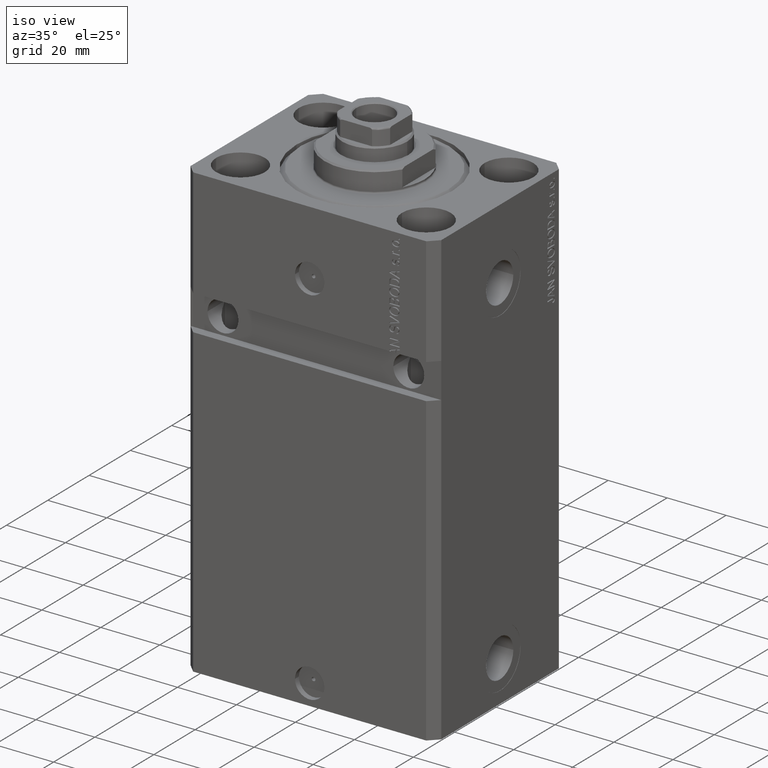
[diagram: clean part render]
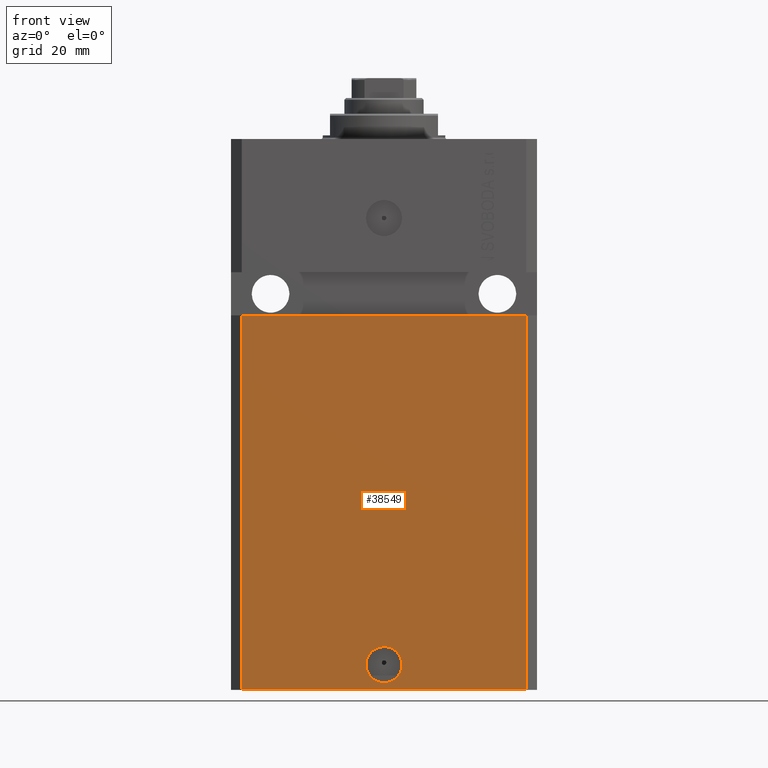
[diagram: tour spotlight — one face highlighted and labeled with its STEP entity id]
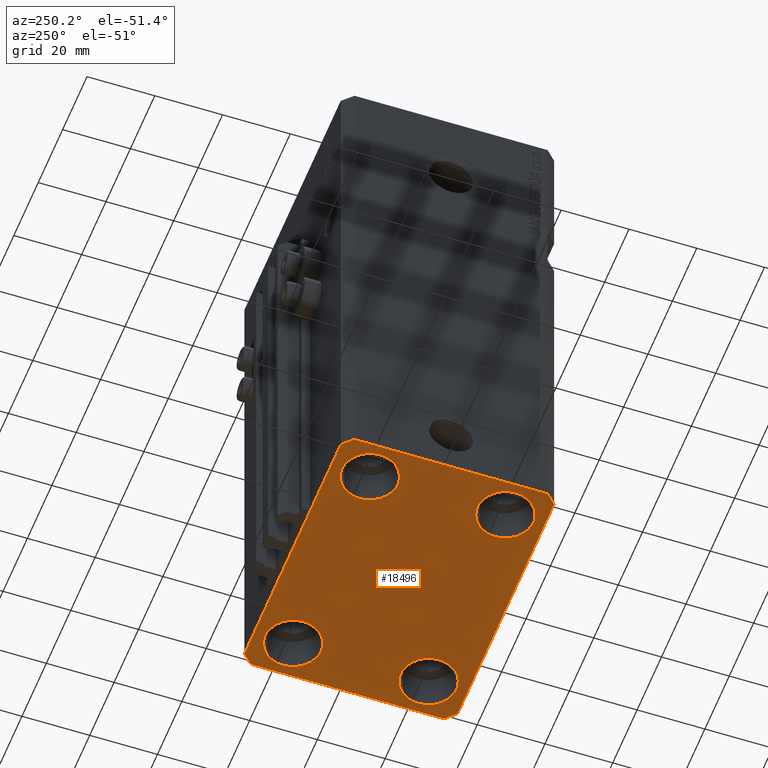
[diagram: tour spotlight — one face highlighted and labeled with its STEP entity id]
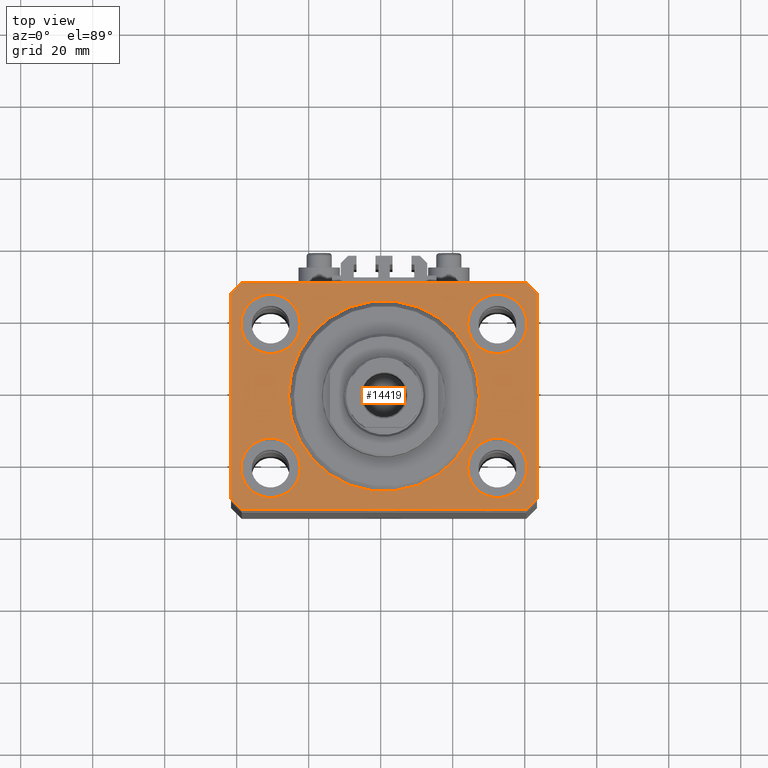
[diagram: tour spotlight — one face highlighted and labeled with its STEP entity id]
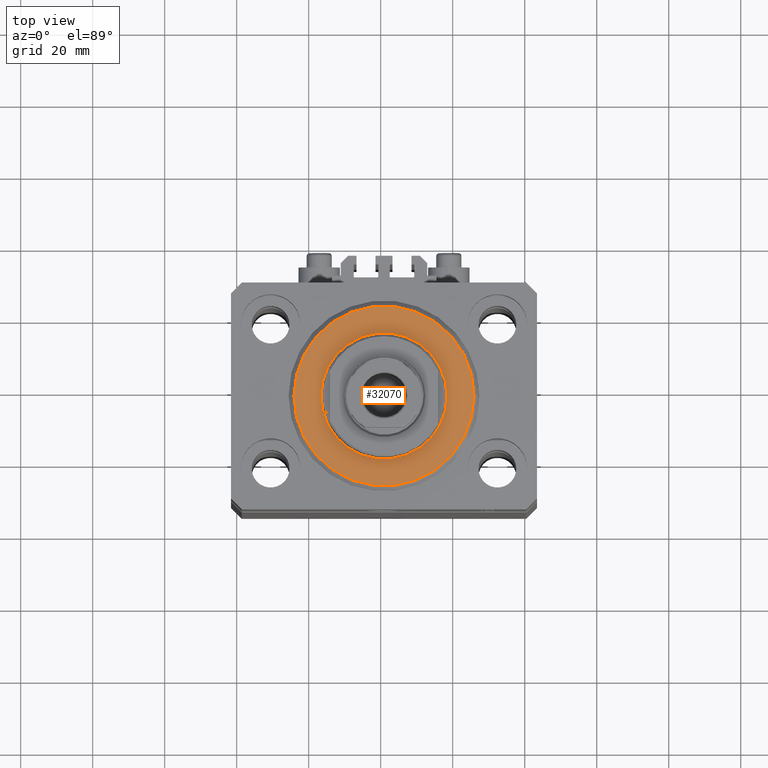
[diagram: tour spotlight — one face highlighted and labeled with its STEP entity id]
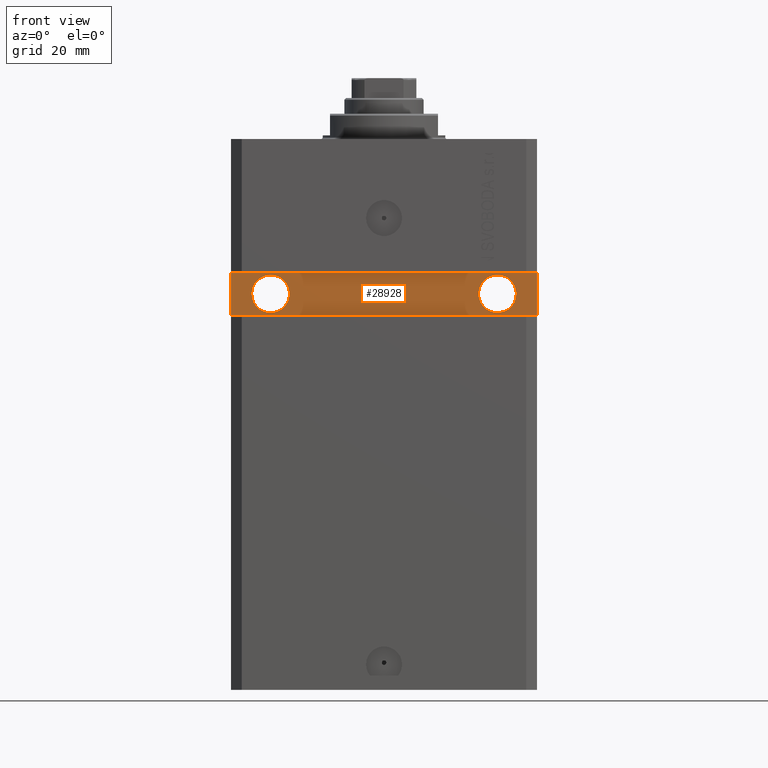
[diagram: tour spotlight — one face highlighted and labeled with its STEP entity id]
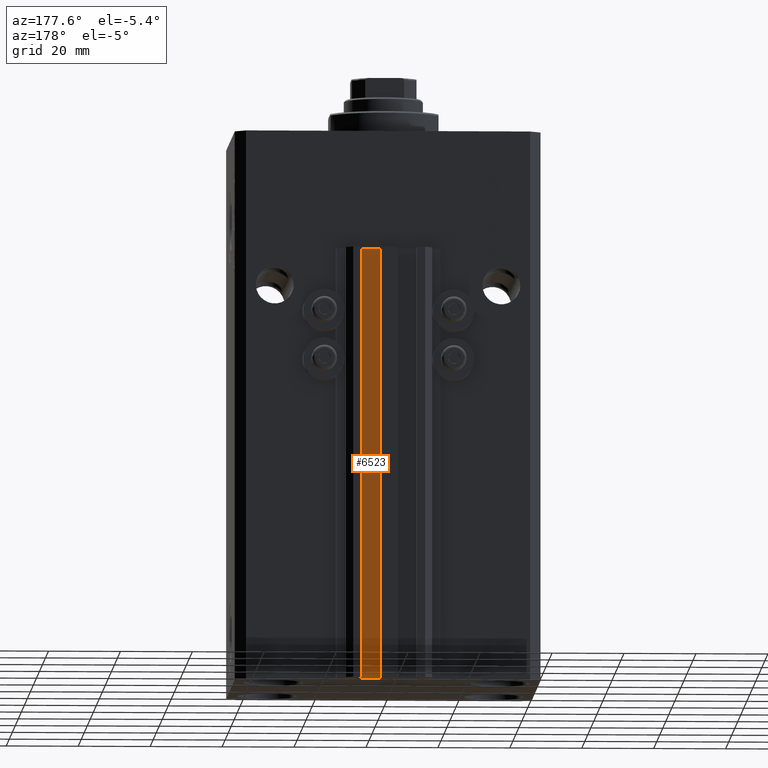
[diagram: tour spotlight — one face highlighted and labeled with its STEP entity id]
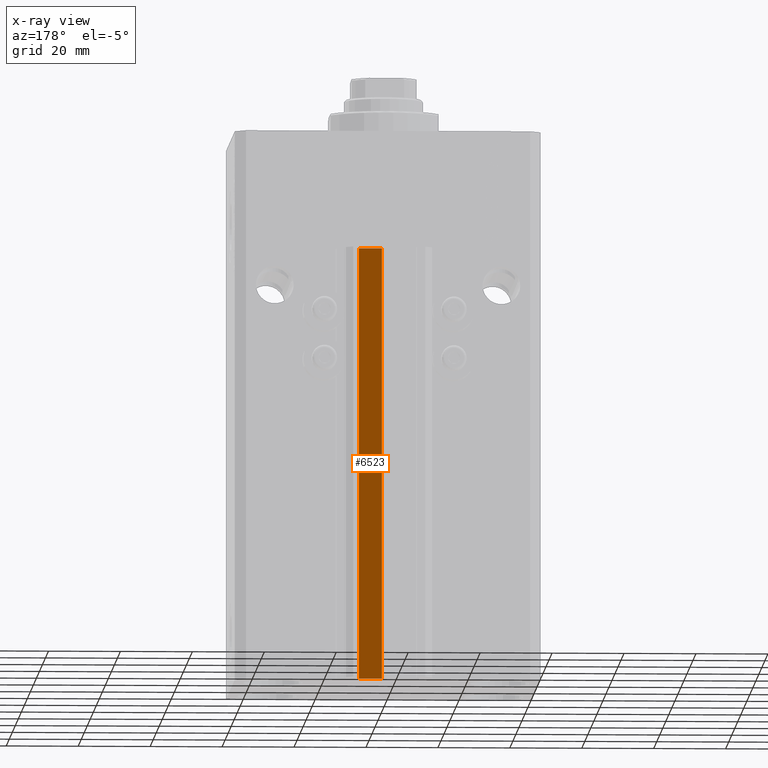
[diagram: x-ray of the same camera — body ghosted, this tour face saturated]
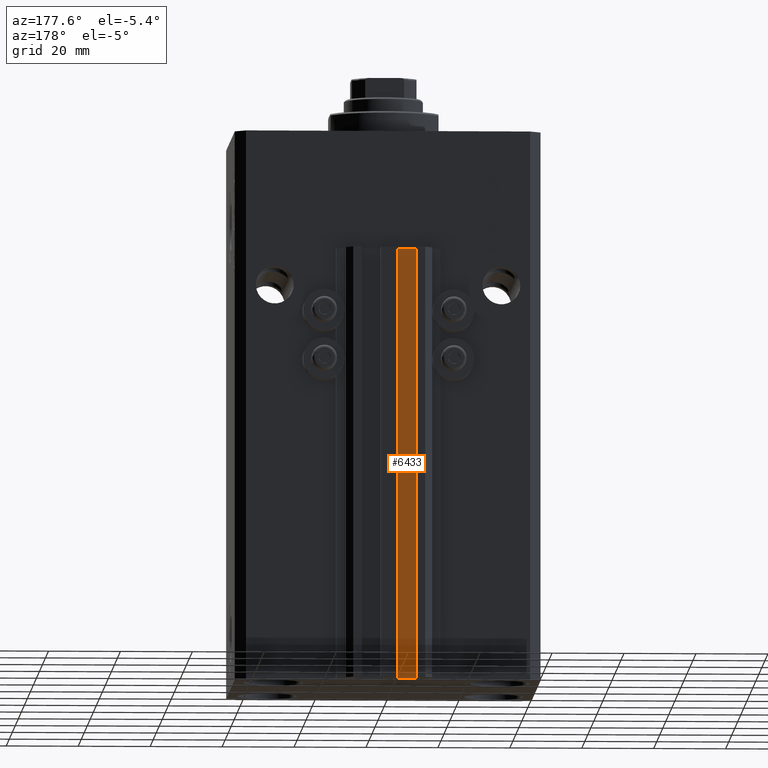
[diagram: tour spotlight — one face highlighted and labeled with its STEP entity id]
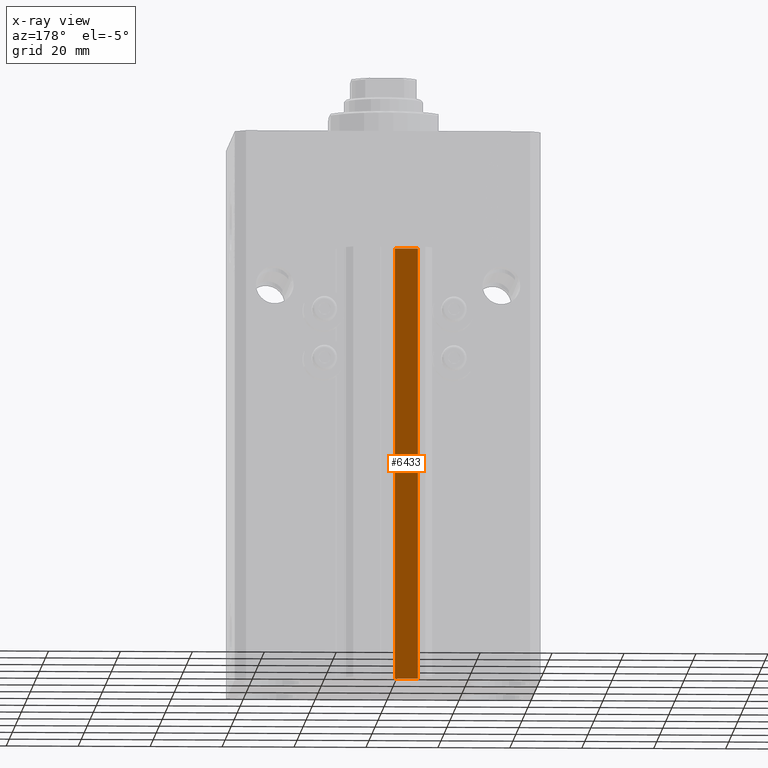
[diagram: x-ray of the same camera — body ghosted, this tour face saturated]
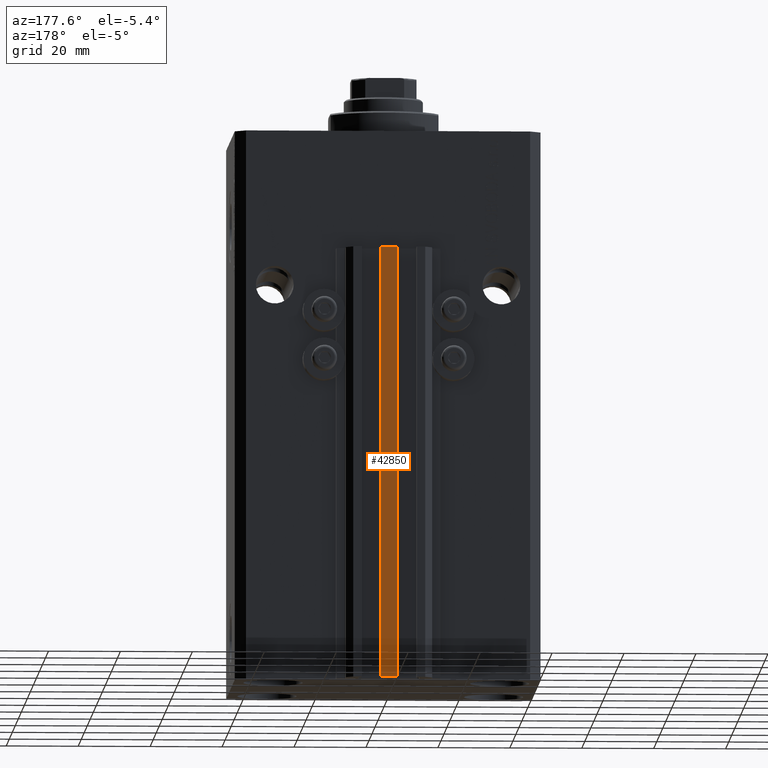
[diagram: tour spotlight — one face highlighted and labeled with its STEP entity id]
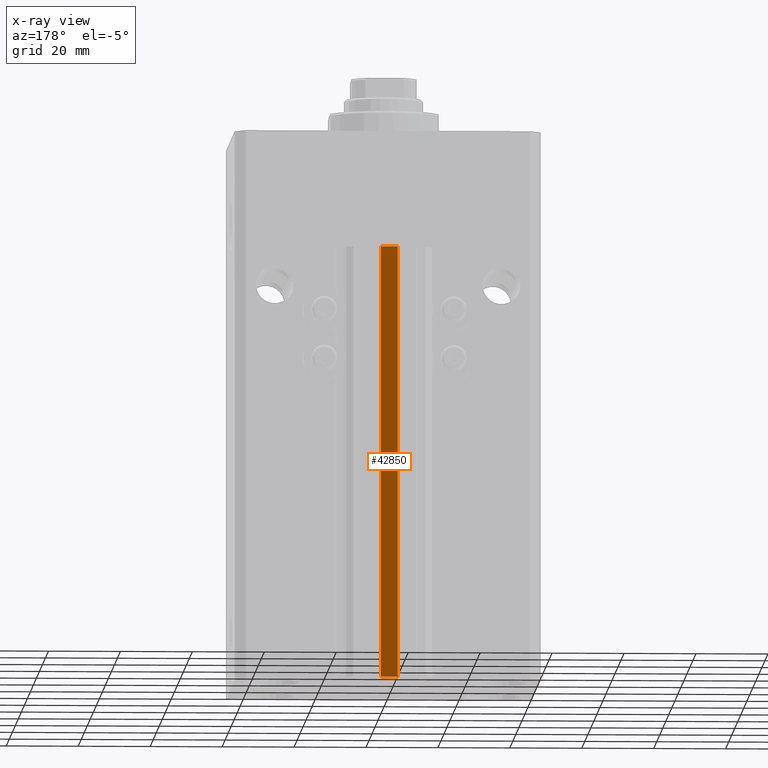
[diagram: x-ray of the same camera — body ghosted, this tour face saturated]
A machine part: a face-by-face anatomy tour. The part has 1103 B-rep faces; the first image is the clean iso view, then the 8 largest visible faces are spotlighted one at a time (largest first), each with its STEP entity span.

Face 1 — front view, entity #38549. In plain terms, the highlighted planar face has unit normal (0, -1, 0).
Definition (entity closure, byte-faithful):
#8 = CARTESIAN_POINT ( 'NONE',  ( -39.50000000000000711, -31.50000000000000000, -153.0000000000000000 ) ) ;
#278 = DIRECTION ( 'NONE',  ( 0.000000000000000000, 0.000000000000000000, 1.000000000000000000 ) ) ;
#1774 = ORIENTED_EDGE ( 'NONE', *, *, #46697, .F. ) ;
#2842 = CARTESIAN_POINT ( 'NONE',  ( 5.000000000000006217, -31.50000000000000000, -146.0000000000000000 ) ) ;
#3178 = LINE ( 'NONE', #8, #32430 ) ;
#3860 = ORIENTED_EDGE ( 'NONE', *, *, #47677, .F. ) ;
#5956 = CARTESIAN_POINT ( 'NONE',  ( 0.000000000000000000, -31.50000000000000000, -146.0000000000000000 ) ) ;
#6248 = VERTEX_POINT ( 'NONE', #45406 ) ;
#6335 = ORIENTED_EDGE ( 'NONE', *, *, #29681, .F. ) ;
#6712 = PLANE ( 'NONE',  #17630 ) ;
#6822 = DIRECTION ( 'NONE',  ( 1.000000000000000000, 0.000000000000000000, 0.000000000000000000 ) ) ;
#6914 = EDGE_CURVE ( 'NONE', #14141, #6248, #41398, .T. ) ;
#9363 = AXIS2_PLACEMENT_3D ( 'NONE', #24425, #39262, #35606 ) ;
#10130 = ORIENTED_EDGE ( 'NONE', *, *, #37106, .T. ) ;
#10357 = FACE_OUTER_BOUND ( 'NONE', #35395, .T. ) ;
#12288 = DIRECTION ( 'NONE',  ( 0.000000000000000000, -1.000000000000000000, 0.000000000000000000 ) ) ;
#13344 = CARTESIAN_POINT ( 'NONE',  ( -5.000000000000006217, -31.50000000000000000, -146.0000000000000000 ) ) ;
#14141 = VERTEX_POINT ( 'NONE', #35783 ) ;
#15105 = VECTOR ( 'NONE', #47016, 1000.000000000000000 ) ;
#15462 = CARTESIAN_POINT ( 'NONE',  ( -39.50000000000000711, -31.50000000000000000, -153.0000000000000000 ) ) ;
#17150 = DIRECTION ( 'NONE',  ( 1.176083712526788232E-16, -1.000000000000000000, 0.000000000000000000 ) ) ;
#17334 = CARTESIAN_POINT ( 'NONE',  ( -42.50000000000001421, -31.50000000000000711, -48.99999999999999289 ) ) ;
#17630 = AXIS2_PLACEMENT_3D ( 'NONE', #15462, #12288, #27127 ) ;
#18100 = LINE ( 'NONE', #32942, #20004 ) ;
#18208 = CARTESIAN_POINT ( 'NONE',  ( 39.50000000000000711, -31.50000000000000000, -153.0000000000000000 ) ) ;
#18302 = ORIENTED_EDGE ( 'NONE', *, *, #40085, .T. ) ;
#19837 = ORIENTED_EDGE ( 'NONE', *, *, #6914, .F. ) ;
#20004 = VECTOR ( 'NONE', #43660, 1000.000000000000000 ) ;
#21792 = CIRCLE ( 'NONE', #38083, 5.000000000000006217 ) ;
#22908 = VERTEX_POINT ( 'NONE', #13344 ) ;
#24425 = CARTESIAN_POINT ( 'NONE',  ( 0.000000000000000000, -31.50000000000000000, -146.0000000000000000 ) ) ;
#26342 = VERTEX_POINT ( 'NONE', #34361 ) ;
#26821 = VERTEX_POINT ( 'NONE', #18208 ) ;
#27023 = EDGE_LOOP ( 'NONE', ( #3860, #1774 ) ) ;
#27127 = DIRECTION ( 'NONE',  ( 0.000000000000000000, -0.000000000000000000, -1.000000000000000000 ) ) ;
#29681 = EDGE_CURVE ( 'NONE', #6248, #26342, #35820, .T. ) ;
#31979 = DIRECTION ( 'NONE',  ( 1.000000000000000000, 0.000000000000000000, 0.000000000000000000 ) ) ;
#32430 = VECTOR ( 'NONE', #6822, 1000.000000000000000 ) ;
#32658 = CIRCLE ( 'NONE', #9363, 5.000000000000006217 ) ;
#32942 = CARTESIAN_POINT ( 'NONE',  ( 39.50000000000000711, -31.50000000000000000, -153.0000000000000000 ) ) ;
#33595 = CARTESIAN_POINT ( 'NONE',  ( -39.50000000000000711, -31.50000000000000000, -153.0000000000000000 ) ) ;
#34361 = CARTESIAN_POINT ( 'NONE',  ( 39.50000000000000000, -31.49999999999999289, -48.99999999999997868 ) ) ;
#35395 = EDGE_LOOP ( 'NONE', ( #6335, #19837, #10130, #18302 ) ) ;
#35606 = DIRECTION ( 'NONE',  ( 1.000000000000000000, 0.000000000000000000, 0.000000000000000000 ) ) ;
#35783 = CARTESIAN_POINT ( 'NONE',  ( -39.50000000000000711, -31.50000000000000000, -153.0000000000000000 ) ) ;
#35820 = LINE ( 'NONE', #17334, #15105 ) ;
#37106 = EDGE_CURVE ( 'NONE', #14141, #26821, #3178, .T. ) ;
#38083 = AXIS2_PLACEMENT_3D ( 'NONE', #5956, #17150, #31979 ) ;
#38549 = ADVANCED_FACE ( 'NONE', ( #47826, #10357 ), #6712, .T. ) ;
#39262 = DIRECTION ( 'NONE',  ( 1.176083712526788232E-16, -1.000000000000000000, 0.000000000000000000 ) ) ;
#40085 = EDGE_CURVE ( 'NONE', #26821, #26342, #18100, .T. ) ;
#41398 = LINE ( 'NONE', #33595, #42211 ) ;
#42211 = VECTOR ( 'NONE', #278, 1000.000000000000000 ) ;
#43660 = DIRECTION ( 'NONE',  ( 0.000000000000000000, 0.000000000000000000, 1.000000000000000000 ) ) ;
#43695 = VERTEX_POINT ( 'NONE', #2842 ) ;
#45406 = CARTESIAN_POINT ( 'NONE',  ( -39.50000000000000000, -31.50000000000000711, -48.99999999999999289 ) ) ;
#46697 = EDGE_CURVE ( 'NONE', #22908, #43695, #21792, .T. ) ;
#47016 = DIRECTION ( 'NONE',  ( 1.000000000000000000, 1.632680918566406054E-16, 1.632680918566406054E-16 ) ) ;
#47677 = EDGE_CURVE ( 'NONE', #43695, #22908, #32658, .T. ) ;
#47826 = FACE_BOUND ( 'NONE', #27023, .T. ) ;

Face 2 — auxiliary view, entity #18496. In plain terms, the highlighted planar face has unit normal (0, 0, 1).
Definition (entity closure, byte-faithful):
#8 = CARTESIAN_POINT ( 'NONE',  ( -39.50000000000000711, -31.50000000000000000, -153.0000000000000000 ) ) ;
#78 = DIRECTION ( 'NONE',  ( -0.000000000000000000, -0.000000000000000000, 1.000000000000000000 ) ) ;
#410 = VECTOR ( 'NONE', #4192, 1000.000000000000000 ) ;
#412 = CARTESIAN_POINT ( 'NONE',  ( 39.74999999999999289, -20.00000000000000000, -153.0000000000000000 ) ) ;
#568 = ORIENTED_EDGE ( 'NONE', *, *, #26287, .T. ) ;
#632 = DIRECTION ( 'NONE',  ( -0.000000000000000000, -0.000000000000000000, 1.000000000000000000 ) ) ;
#644 = LINE ( 'NONE', #29581, #9854 ) ;
#814 = ORIENTED_EDGE ( 'NONE', *, *, #8793, .T. ) ;
#868 = EDGE_LOOP ( 'NONE', ( #41194, #25201 ) ) ;
#988 = VERTEX_POINT ( 'NONE', #38942 ) ;
#1632 = VERTEX_POINT ( 'NONE', #7566 ) ;
#1738 = CARTESIAN_POINT ( 'NONE',  ( -42.50000000000000000, -28.50000000000000000, -153.0000000000000000 ) ) ;
#1777 = EDGE_LOOP ( 'NONE', ( #814, #568 ) ) ;
#2464 = CARTESIAN_POINT ( 'NONE',  ( 31.50000000000000000, -20.00000000000000000, -153.0000000000000000 ) ) ;
#2604 = DIRECTION ( 'NONE',  ( 8.886653596232072440E-15, 1.000000000000000000, 0.000000000000000000 ) ) ;
#2937 = EDGE_CURVE ( 'NONE', #33507, #43984, #41332, .T. ) ;
#3178 = LINE ( 'NONE', #8, #32430 ) ;
#3311 = DIRECTION ( 'NONE',  ( -0.000000000000000000, -0.000000000000000000, 1.000000000000000000 ) ) ;
#3383 = EDGE_CURVE ( 'NONE', #41866, #14682, #35875, .T. ) ;
#4065 = LINE ( 'NONE', #40155, #31470 ) ;
#4192 = DIRECTION ( 'NONE',  ( 0.7071067811865483499, 0.7071067811865466846, 0.000000000000000000 ) ) ;
#4294 = DIRECTION ( 'NONE',  ( -1.000000000000000000, 0.000000000000000000, 0.000000000000000000 ) ) ;
#4904 = ORIENTED_EDGE ( 'NONE', *, *, #28219, .F. ) ;
#5120 = EDGE_CURVE ( 'NONE', #25853, #33823, #12841, .T. ) ;
#6196 = EDGE_CURVE ( 'NONE', #16143, #18976, #41761, .T. ) ;
#6262 = DIRECTION ( 'NONE',  ( -0.7071067811865356934, 0.7071067811865594521, 0.000000000000000000 ) ) ;
#6471 = VERTEX_POINT ( 'NONE', #24936 ) ;
#6535 = CIRCLE ( 'NONE', #7314, 8.250000000000000000 ) ;
#6678 = CARTESIAN_POINT ( 'NONE',  ( 23.25000000000000355, 20.00000000000001066, -153.0000000000000000 ) ) ;
#6822 = DIRECTION ( 'NONE',  ( 1.000000000000000000, 0.000000000000000000, 0.000000000000000000 ) ) ;
#6922 = DIRECTION ( 'NONE',  ( 0.000000000000000000, 0.000000000000000000, 1.000000000000000000 ) ) ;
#7314 = AXIS2_PLACEMENT_3D ( 'NONE', #35787, #28246, #17535 ) ;
#7566 = CARTESIAN_POINT ( 'NONE',  ( 42.50000000000000711, -28.50000000000000355, -153.0000000000000000 ) ) ;
#8417 = DIRECTION ( 'NONE',  ( 0.000000000000000000, -1.000000000000000000, 0.000000000000000000 ) ) ;
#8793 = EDGE_CURVE ( 'NONE', #6471, #46830, #6535, .T. ) ;
#9063 = ORIENTED_EDGE ( 'NONE', *, *, #14061, .F. ) ;
#9854 = VECTOR ( 'NONE', #4294, 1000.000000000000000 ) ;
#10093 = CARTESIAN_POINT ( 'NONE',  ( 0.000000000000000000, 0.000000000000000000, -153.0000000000000000 ) ) ;
#10363 = CARTESIAN_POINT ( 'NONE',  ( 42.50000000000000711, -28.50000000000000355, -153.0000000000000000 ) ) ;
#10562 = FACE_BOUND ( 'NONE', #36888, .T. ) ;
#11212 = CARTESIAN_POINT ( 'NONE',  ( 31.50000000000000000, 20.00000000000001066, -153.0000000000000000 ) ) ;
#12525 = DIRECTION ( 'NONE',  ( -0.000000000000000000, -0.000000000000000000, 1.000000000000000000 ) ) ;
#12718 = ORIENTED_EDGE ( 'NONE', *, *, #2937, .T. ) ;
#12841 = LINE ( 'NONE', #39596, #30522 ) ;
#13342 = EDGE_CURVE ( 'NONE', #14682, #41866, #34543, .T. ) ;
#14061 = EDGE_CURVE ( 'NONE', #44658, #16143, #4065, .T. ) ;
#14141 = VERTEX_POINT ( 'NONE', #35783 ) ;
#14148 = EDGE_CURVE ( 'NONE', #43984, #33507, #28359, .T. ) ;
#14392 = DIRECTION ( 'NONE',  ( -0.000000000000000000, -0.000000000000000000, 1.000000000000000000 ) ) ;
#14682 = VERTEX_POINT ( 'NONE', #47995 ) ;
#14786 = EDGE_CURVE ( 'NONE', #26821, #1632, #45304, .T. ) ;
#15238 = ORIENTED_EDGE ( 'NONE', *, *, #14148, .T. ) ;
#15446 = AXIS2_PLACEMENT_3D ( 'NONE', #21746, #78, #37287 ) ;
#15811 = VECTOR ( 'NONE', #8417, 1000.000000000000000 ) ;
#15941 = DIRECTION ( 'NONE',  ( 1.000000000000000000, 0.000000000000000000, 0.000000000000000000 ) ) ;
#16143 = VERTEX_POINT ( 'NONE', #30165 ) ;
#16928 = FACE_BOUND ( 'NONE', #46778, .T. ) ;
#17253 = DIRECTION ( 'NONE',  ( 0.7071067811865471286, -0.7071067811865479058, 0.000000000000000000 ) ) ;
#17275 = AXIS2_PLACEMENT_3D ( 'NONE', #26524, #42344, #30413 ) ;
#17535 = DIRECTION ( 'NONE',  ( 1.000000000000000000, 0.000000000000000000, 0.000000000000000000 ) ) ;
#17773 = CIRCLE ( 'NONE', #15446, 8.250000000000000000 ) ;
#18003 = DIRECTION ( 'NONE',  ( -0.7071067811865471286, -0.7071067811865479058, 0.000000000000000000 ) ) ;
#18154 = CARTESIAN_POINT ( 'NONE',  ( 39.50000000000056843, 31.50000000000000000, -153.0000000000000000 ) ) ;
#18208 = CARTESIAN_POINT ( 'NONE',  ( 39.50000000000000711, -31.50000000000000000, -153.0000000000000000 ) ) ;
#18225 = EDGE_CURVE ( 'NONE', #33823, #44658, #644, .T. ) ;
#18496 = ADVANCED_FACE ( 'NONE', ( #36586, #16928, #10562, #43662, #43431 ), #35647, .F. ) ;
#18976 = VERTEX_POINT ( 'NONE', #1738 ) ;
#19337 = VECTOR ( 'NONE', #17253, 1000.000000000000000 ) ;
#19587 = CARTESIAN_POINT ( 'NONE',  ( -31.50000000000000000, 20.00000000000000000, -153.0000000000000000 ) ) ;
#19932 = CARTESIAN_POINT ( 'NONE',  ( -23.25000000000000000, -20.00000000000000000, -153.0000000000000000 ) ) ;
#20917 = CARTESIAN_POINT ( 'NONE',  ( 42.50000000000051870, 28.49999999999995381, -153.0000000000000000 ) ) ;
#21334 = CARTESIAN_POINT ( 'NONE',  ( -31.50000000000000000, 20.00000000000000000, -153.0000000000000000 ) ) ;
#21746 = CARTESIAN_POINT ( 'NONE',  ( -31.50000000000000000, -20.00000000000000000, -153.0000000000000000 ) ) ;
#22763 = CARTESIAN_POINT ( 'NONE',  ( 31.50000000000000000, 20.00000000000001066, -153.0000000000000000 ) ) ;
#24393 = ORIENTED_EDGE ( 'NONE', *, *, #6196, .F. ) ;
#24485 = AXIS2_PLACEMENT_3D ( 'NONE', #2464, #47455, #46979 ) ;
#24936 = CARTESIAN_POINT ( 'NONE',  ( -39.75000000000000000, -20.00000000000000000, -153.0000000000000000 ) ) ;
#25201 = ORIENTED_EDGE ( 'NONE', *, *, #13342, .T. ) ;
#25253 = LINE ( 'NONE', #35732, #19337 ) ;
#25853 = VERTEX_POINT ( 'NONE', #20917 ) ;
#26034 = ORIENTED_EDGE ( 'NONE', *, *, #18225, .F. ) ;
#26287 = EDGE_CURVE ( 'NONE', #46830, #6471, #17773, .T. ) ;
#26524 = CARTESIAN_POINT ( 'NONE',  ( 31.50000000000000000, -20.00000000000000000, -153.0000000000000000 ) ) ;
#26821 = VERTEX_POINT ( 'NONE', #18208 ) ;
#27391 = EDGE_CURVE ( 'NONE', #30780, #988, #31330, .T. ) ;
#28219 = EDGE_CURVE ( 'NONE', #1632, #25853, #39588, .T. ) ;
#28246 = DIRECTION ( 'NONE',  ( -0.000000000000000000, -0.000000000000000000, 1.000000000000000000 ) ) ;
#28359 = CIRCLE ( 'NONE', #24485, 8.249999999999992895 ) ;
#29161 = ORIENTED_EDGE ( 'NONE', *, *, #39334, .T. ) ;
#29210 = DIRECTION ( 'NONE',  ( 1.000000000000000000, 0.000000000000000000, 0.000000000000000000 ) ) ;
#29581 = CARTESIAN_POINT ( 'NONE',  ( 39.50000000000056843, 31.50000000000000000, -153.0000000000000000 ) ) ;
#29806 = DIRECTION ( 'NONE',  ( 1.000000000000000000, 0.000000000000000000, 0.000000000000000000 ) ) ;
#30165 = CARTESIAN_POINT ( 'NONE',  ( -42.50000000000000000, 28.50000000000000000, -153.0000000000000000 ) ) ;
#30413 = DIRECTION ( 'NONE',  ( 1.000000000000000000, 0.000000000000000000, 0.000000000000000000 ) ) ;
#30522 = VECTOR ( 'NONE', #6262, 1000.000000000000114 ) ;
#30780 = VERTEX_POINT ( 'NONE', #6678 ) ;
#30799 = CARTESIAN_POINT ( 'NONE',  ( -42.50000000000000000, 28.50000000000000000, -153.0000000000000000 ) ) ;
#31330 = CIRCLE ( 'NONE', #33629, 8.249999999999992895 ) ;
#31394 = ORIENTED_EDGE ( 'NONE', *, *, #37106, .F. ) ;
#31470 = VECTOR ( 'NONE', #18003, 1000.000000000000000 ) ;
#31909 = CARTESIAN_POINT ( 'NONE',  ( -39.50000000000000711, 31.50000000000000000, -153.0000000000000000 ) ) ;
#32429 = AXIS2_PLACEMENT_3D ( 'NONE', #10093, #6922, #46616 ) ;
#32430 = VECTOR ( 'NONE', #6822, 1000.000000000000000 ) ;
#33507 = VERTEX_POINT ( 'NONE', #412 ) ;
#33629 = AXIS2_PLACEMENT_3D ( 'NONE', #22763, #632, #37113 ) ;
#33823 = VERTEX_POINT ( 'NONE', #18154 ) ;
#33904 = AXIS2_PLACEMENT_3D ( 'NONE', #11212, #14392, #29210 ) ;
#34071 = ORIENTED_EDGE ( 'NONE', *, *, #14786, .F. ) ;
#34543 = CIRCLE ( 'NONE', #38413, 8.250000000000000000 ) ;
#34582 = CARTESIAN_POINT ( 'NONE',  ( 39.50000000000000711, -31.50000000000000000, -153.0000000000000000 ) ) ;
#35640 = EDGE_LOOP ( 'NONE', ( #26034, #42585, #4904, #34071, #31394, #36387, #24393, #9063 ) ) ;
#35647 = PLANE ( 'NONE',  #32429 ) ;
#35732 = CARTESIAN_POINT ( 'NONE',  ( -42.50000000000000000, -28.50000000000000000, -153.0000000000000000 ) ) ;
#35783 = CARTESIAN_POINT ( 'NONE',  ( -39.50000000000000711, -31.50000000000000000, -153.0000000000000000 ) ) ;
#35787 = CARTESIAN_POINT ( 'NONE',  ( -31.50000000000000000, -20.00000000000000000, -153.0000000000000000 ) ) ;
#35875 = CIRCLE ( 'NONE', #45226, 8.250000000000000000 ) ;
#36387 = ORIENTED_EDGE ( 'NONE', *, *, #44202, .F. ) ;
#36586 = FACE_BOUND ( 'NONE', #1777, .T. ) ;
#36888 = EDGE_LOOP ( 'NONE', ( #37513, #29161 ) ) ;
#37106 = EDGE_CURVE ( 'NONE', #14141, #26821, #3178, .T. ) ;
#37113 = DIRECTION ( 'NONE',  ( 1.000000000000000000, 0.000000000000000000, 0.000000000000000000 ) ) ;
#37287 = DIRECTION ( 'NONE',  ( 1.000000000000000000, 0.000000000000000000, 0.000000000000000000 ) ) ;
#37513 = ORIENTED_EDGE ( 'NONE', *, *, #27391, .T. ) ;
#38413 = AXIS2_PLACEMENT_3D ( 'NONE', #19587, #12525, #15941 ) ;
#38942 = CARTESIAN_POINT ( 'NONE',  ( 39.74999999999999289, 20.00000000000001066, -153.0000000000000000 ) ) ;
#39334 = EDGE_CURVE ( 'NONE', #988, #30780, #40142, .T. ) ;
#39588 = LINE ( 'NONE', #10363, #44579 ) ;
#39596 = CARTESIAN_POINT ( 'NONE',  ( 42.50000000000051870, 28.49999999999995381, -153.0000000000000000 ) ) ;
#40038 = CARTESIAN_POINT ( 'NONE',  ( -39.75000000000000000, 20.00000000000000000, -153.0000000000000000 ) ) ;
#40142 = CIRCLE ( 'NONE', #33904, 8.249999999999992895 ) ;
#40155 = CARTESIAN_POINT ( 'NONE',  ( -39.50000000000000711, 31.50000000000000000, -153.0000000000000000 ) ) ;
#41194 = ORIENTED_EDGE ( 'NONE', *, *, #3383, .T. ) ;
#41332 = CIRCLE ( 'NONE', #17275, 8.249999999999992895 ) ;
#41761 = LINE ( 'NONE', #30799, #15811 ) ;
#41866 = VERTEX_POINT ( 'NONE', #40038 ) ;
#42344 = DIRECTION ( 'NONE',  ( -0.000000000000000000, -0.000000000000000000, 1.000000000000000000 ) ) ;
#42585 = ORIENTED_EDGE ( 'NONE', *, *, #5120, .F. ) ;
#43431 = FACE_OUTER_BOUND ( 'NONE', #35640, .T. ) ;
#43662 = FACE_BOUND ( 'NONE', #868, .T. ) ;
#43984 = VERTEX_POINT ( 'NONE', #46982 ) ;
#44202 = EDGE_CURVE ( 'NONE', #18976, #14141, #25253, .T. ) ;
#44579 = VECTOR ( 'NONE', #2604, 1000.000000000000000 ) ;
#44658 = VERTEX_POINT ( 'NONE', #31909 ) ;
#45226 = AXIS2_PLACEMENT_3D ( 'NONE', #21334, #3311, #29806 ) ;
#45304 = LINE ( 'NONE', #34582, #410 ) ;
#46616 = DIRECTION ( 'NONE',  ( 1.000000000000000000, 0.000000000000000000, -0.000000000000000000 ) ) ;
#46778 = EDGE_LOOP ( 'NONE', ( #15238, #12718 ) ) ;
#46830 = VERTEX_POINT ( 'NONE', #19932 ) ;
#46979 = DIRECTION ( 'NONE',  ( 1.000000000000000000, 0.000000000000000000, 0.000000000000000000 ) ) ;
#46982 = CARTESIAN_POINT ( 'NONE',  ( 23.25000000000000355, -20.00000000000000000, -153.0000000000000000 ) ) ;
#47455 = DIRECTION ( 'NONE',  ( -0.000000000000000000, -0.000000000000000000, 1.000000000000000000 ) ) ;
#47995 = CARTESIAN_POINT ( 'NONE',  ( -23.25000000000000000, 20.00000000000000000, -153.0000000000000000 ) ) ;

Face 3 — top view, entity #14419. In plain terms, the highlighted planar face has unit normal (0, 0, 1).
Definition (entity closure, byte-faithful):
#329 = VERTEX_POINT ( 'NONE', #4340 ) ;
#712 = CARTESIAN_POINT ( 'NONE',  ( 31.50000000000000000, -20.00000000000000000, 0.000000000000000000 ) ) ;
#846 = DIRECTION ( 'NONE',  ( 1.000000000000000000, 0.000000000000000000, -0.000000000000000000 ) ) ;
#1185 = CARTESIAN_POINT ( 'NONE',  ( 23.25000000000000355, 20.00000000000001066, 0.000000000000000000 ) ) ;
#1248 = ORIENTED_EDGE ( 'NONE', *, *, #30641, .T. ) ;
#1829 = CARTESIAN_POINT ( 'NONE',  ( -31.50000000000000000, -20.00000000000000000, 0.000000000000000000 ) ) ;
#1853 = DIRECTION ( 'NONE',  ( 0.7071067811865471286, -0.7071067811865479058, 0.000000000000000000 ) ) ;
#1886 = CIRCLE ( 'NONE', #32945, 8.249999999999992895 ) ;
#1914 = LINE ( 'NONE', #9208, #31199 ) ;
#2015 = VERTEX_POINT ( 'NONE', #1185 ) ;
#2092 = EDGE_CURVE ( 'NONE', #28853, #329, #1914, .T. ) ;
#2149 = EDGE_LOOP ( 'NONE', ( #28929, #47914 ) ) ;
#2357 = ORIENTED_EDGE ( 'NONE', *, *, #39915, .F. ) ;
#2917 = CIRCLE ( 'NONE', #23093, 26.50000000000000355 ) ;
#3463 = AXIS2_PLACEMENT_3D ( 'NONE', #35137, #31260, #23481 ) ;
#3778 = EDGE_CURVE ( 'NONE', #2015, #26593, #10241, .T. ) ;
#3875 = CARTESIAN_POINT ( 'NONE',  ( -39.75000000000000000, -20.00000000000000000, 0.000000000000000000 ) ) ;
#4340 = CARTESIAN_POINT ( 'NONE',  ( -42.50000000000000000, 28.50000000000000000, 0.000000000000000000 ) ) ;
#4523 = CARTESIAN_POINT ( 'NONE',  ( 42.50000000000051870, 28.49999999999995381, 0.000000000000000000 ) ) ;
#4595 = DIRECTION ( 'NONE',  ( 1.000000000000000000, 0.000000000000000000, 0.000000000000000000 ) ) ;
#4617 = CARTESIAN_POINT ( 'NONE',  ( -23.25000000000000000, 20.00000000000000000, 0.000000000000000000 ) ) ;
#4829 = CARTESIAN_POINT ( 'NONE',  ( -31.50000000000000000, -20.00000000000000000, 0.000000000000000000 ) ) ;
#5267 = CARTESIAN_POINT ( 'NONE',  ( -42.50000000000000000, -28.50000000000000000, 0.000000000000000000 ) ) ;
#6095 = ORIENTED_EDGE ( 'NONE', *, *, #13231, .F. ) ;
#6124 = CARTESIAN_POINT ( 'NONE',  ( -42.50000000000000000, -28.50000000000000000, 0.000000000000000000 ) ) ;
#7178 = ORIENTED_EDGE ( 'NONE', *, *, #8640, .T. ) ;
#7537 = VERTEX_POINT ( 'NONE', #32708 ) ;
#8348 = CARTESIAN_POINT ( 'NONE',  ( 31.50000000000000000, 20.00000000000001066, 0.000000000000000000 ) ) ;
#8531 = CARTESIAN_POINT ( 'NONE',  ( -39.50000000000000711, 31.50000000000000000, 0.000000000000000000 ) ) ;
#8640 = EDGE_CURVE ( 'NONE', #19363, #26697, #46520, .T. ) ;
#8797 = CARTESIAN_POINT ( 'NONE',  ( -39.50000000000000711, -31.50000000000000000, 0.000000000000000000 ) ) ;
#8853 = EDGE_CURVE ( 'NONE', #45859, #33169, #22858, .T. ) ;
#8888 = ORIENTED_EDGE ( 'NONE', *, *, #38951, .F. ) ;
#9208 = CARTESIAN_POINT ( 'NONE',  ( -39.50000000000000711, 31.50000000000000000, 0.000000000000000000 ) ) ;
#9522 = EDGE_CURVE ( 'NONE', #40862, #28853, #10588, .T. ) ;
#9770 = VERTEX_POINT ( 'NONE', #44529 ) ;
#10031 = DIRECTION ( 'NONE',  ( 0.000000000000000000, 0.000000000000000000, 1.000000000000000000 ) ) ;
#10159 = EDGE_CURVE ( 'NONE', #33169, #45859, #19656, .T. ) ;
#10241 = CIRCLE ( 'NONE', #34338, 8.249999999999992895 ) ;
#10329 = VERTEX_POINT ( 'NONE', #4523 ) ;
#10588 = LINE ( 'NONE', #14734, #16572 ) ;
#11093 = DIRECTION ( 'NONE',  ( 0.000000000000000000, 0.000000000000000000, 1.000000000000000000 ) ) ;
#11316 = DIRECTION ( 'NONE',  ( 0.000000000000000000, 0.000000000000000000, 1.000000000000000000 ) ) ;
#11515 = DIRECTION ( 'NONE',  ( 1.000000000000000000, 0.000000000000000000, 0.000000000000000000 ) ) ;
#12075 = CIRCLE ( 'NONE', #43172, 8.249999999999992895 ) ;
#13231 = EDGE_CURVE ( 'NONE', #26593, #2015, #39212, .T. ) ;
#13247 = EDGE_CURVE ( 'NONE', #26697, #14383, #42216, .T. ) ;
#13744 = AXIS2_PLACEMENT_3D ( 'NONE', #27922, #17216, #31816 ) ;
#13958 = ORIENTED_EDGE ( 'NONE', *, *, #3778, .F. ) ;
#14122 = CARTESIAN_POINT ( 'NONE',  ( -31.50000000000000000, 20.00000000000000000, 0.000000000000000000 ) ) ;
#14383 = VERTEX_POINT ( 'NONE', #15688 ) ;
#14419 = ADVANCED_FACE ( 'NONE', ( #41961, #33917, #16179, #44881, #22985, #15444 ), #30274, .T. ) ;
#14734 = CARTESIAN_POINT ( 'NONE',  ( 39.50000000000056843, 31.50000000000000000, 0.000000000000000000 ) ) ;
#14741 = CARTESIAN_POINT ( 'NONE',  ( -31.50000000000000000, 20.00000000000000000, 0.000000000000000000 ) ) ;
#14921 = VERTEX_POINT ( 'NONE', #6124 ) ;
#15309 = DIRECTION ( 'NONE',  ( 1.000000000000000000, 0.000000000000000000, 0.000000000000000000 ) ) ;
#15444 = FACE_OUTER_BOUND ( 'NONE', #29304, .T. ) ;
#15533 = DIRECTION ( 'NONE',  ( 0.000000000000000000, 0.000000000000000000, 1.000000000000000000 ) ) ;
#15688 = CARTESIAN_POINT ( 'NONE',  ( 42.50000000000000711, -28.50000000000000355, 0.000000000000000000 ) ) ;
#16014 = VECTOR ( 'NONE', #40784, 1000.000000000000000 ) ;
#16179 = FACE_BOUND ( 'NONE', #21108, .T. ) ;
#16387 = VERTEX_POINT ( 'NONE', #44474 ) ;
#16572 = VECTOR ( 'NONE', #29549, 1000.000000000000000 ) ;
#16744 = AXIS2_PLACEMENT_3D ( 'NONE', #45126, #34159, #846 ) ;
#16929 = LINE ( 'NONE', #31771, #39973 ) ;
#17216 = DIRECTION ( 'NONE',  ( 0.000000000000000000, 0.000000000000000000, 1.000000000000000000 ) ) ;
#17255 = ORIENTED_EDGE ( 'NONE', *, *, #33857, .T. ) ;
#18188 = VECTOR ( 'NONE', #31669, 1000.000000000000000 ) ;
#18220 = VECTOR ( 'NONE', #46103, 1000.000000000000000 ) ;
#18854 = DIRECTION ( 'NONE',  ( 1.000000000000000000, 0.000000000000000000, 0.000000000000000000 ) ) ;
#19363 = VERTEX_POINT ( 'NONE', #25007 ) ;
#19640 = CARTESIAN_POINT ( 'NONE',  ( 39.74999999999999289, -20.00000000000000000, 0.000000000000000000 ) ) ;
#19656 = CIRCLE ( 'NONE', #46850, 8.250000000000000000 ) ;
#20734 = ORIENTED_EDGE ( 'NONE', *, *, #9522, .T. ) ;
#20957 = DIRECTION ( 'NONE',  ( 0.000000000000000000, 0.000000000000000000, 1.000000000000000000 ) ) ;
#21108 = EDGE_LOOP ( 'NONE', ( #6095, #13958 ) ) ;
#21516 = EDGE_LOOP ( 'NONE', ( #2357, #8888 ) ) ;
#21796 = EDGE_LOOP ( 'NONE', ( #33349, #46767 ) ) ;
#21802 = ORIENTED_EDGE ( 'NONE', *, *, #8853, .F. ) ;
#21869 = DIRECTION ( 'NONE',  ( 0.000000000000000000, -1.000000000000000000, 0.000000000000000000 ) ) ;
#22042 = CIRCLE ( 'NONE', #26693, 8.250000000000000000 ) ;
#22105 = CARTESIAN_POINT ( 'NONE',  ( 39.50000000000000711, -31.50000000000000000, 0.000000000000000000 ) ) ;
#22184 = VECTOR ( 'NONE', #1853, 1000.000000000000000 ) ;
#22771 = CARTESIAN_POINT ( 'NONE',  ( 42.50000000000000711, -28.50000000000000355, 0.000000000000000000 ) ) ;
#22858 = CIRCLE ( 'NONE', #38419, 8.250000000000000000 ) ;
#22985 = FACE_BOUND ( 'NONE', #21516, .T. ) ;
#23093 = AXIS2_PLACEMENT_3D ( 'NONE', #44437, #11093, #33474 ) ;
#23254 = ORIENTED_EDGE ( 'NONE', *, *, #13247, .T. ) ;
#23481 = DIRECTION ( 'NONE',  ( 1.000000000000000000, 0.000000000000000000, 0.000000000000000000 ) ) ;
#23511 = LINE ( 'NONE', #5267, #22184 ) ;
#23996 = VECTOR ( 'NONE', #21869, 1000.000000000000000 ) ;
#24211 = DIRECTION ( 'NONE',  ( 0.000000000000000000, 0.000000000000000000, 1.000000000000000000 ) ) ;
#24618 = AXIS2_PLACEMENT_3D ( 'NONE', #4829, #15533, #4595 ) ;
#25007 = CARTESIAN_POINT ( 'NONE',  ( -39.50000000000000711, -31.50000000000000000, 0.000000000000000000 ) ) ;
#25312 = DIRECTION ( 'NONE',  ( 1.000000000000000000, 0.000000000000000000, 0.000000000000000000 ) ) ;
#25700 = LINE ( 'NONE', #22771, #16014 ) ;
#26593 = VERTEX_POINT ( 'NONE', #28444 ) ;
#26693 = AXIS2_PLACEMENT_3D ( 'NONE', #1829, #24211, #39047 ) ;
#26697 = VERTEX_POINT ( 'NONE', #22105 ) ;
#26735 = EDGE_CURVE ( 'NONE', #329, #14921, #40122, .T. ) ;
#27848 = CARTESIAN_POINT ( 'NONE',  ( 39.50000000000000711, -31.50000000000000000, 0.000000000000000000 ) ) ;
#27922 = CARTESIAN_POINT ( 'NONE',  ( 0.000000000000000000, 0.000000000000000000, 0.000000000000000000 ) ) ;
#28434 = EDGE_CURVE ( 'NONE', #32168, #28924, #22042, .T. ) ;
#28444 = CARTESIAN_POINT ( 'NONE',  ( 39.74999999999999289, 20.00000000000001066, 0.000000000000000000 ) ) ;
#28853 = VERTEX_POINT ( 'NONE', #8531 ) ;
#28924 = VERTEX_POINT ( 'NONE', #39416 ) ;
#28929 = ORIENTED_EDGE ( 'NONE', *, *, #38890, .F. ) ;
#29238 = CIRCLE ( 'NONE', #13744, 26.50000000000000355 ) ;
#29284 = CARTESIAN_POINT ( 'NONE',  ( 39.50000000000056843, 31.50000000000000000, 0.000000000000000000 ) ) ;
#29304 = EDGE_LOOP ( 'NONE', ( #20734, #30931, #36002, #41668, #7178, #23254, #17255, #1248 ) ) ;
#29549 = DIRECTION ( 'NONE',  ( -1.000000000000000000, 0.000000000000000000, 0.000000000000000000 ) ) ;
#29625 = EDGE_CURVE ( 'NONE', #45329, #7537, #1886, .T. ) ;
#30274 = PLANE ( 'NONE',  #16744 ) ;
#30641 = EDGE_CURVE ( 'NONE', #10329, #40862, #16929, .T. ) ;
#30828 = CIRCLE ( 'NONE', #24618, 8.250000000000000000 ) ;
#30867 = DIRECTION ( 'NONE',  ( 0.000000000000000000, 0.000000000000000000, 1.000000000000000000 ) ) ;
#30931 = ORIENTED_EDGE ( 'NONE', *, *, #2092, .T. ) ;
#31189 = EDGE_LOOP ( 'NONE', ( #32174, #21802 ) ) ;
#31199 = VECTOR ( 'NONE', #32300, 1000.000000000000000 ) ;
#31260 = DIRECTION ( 'NONE',  ( 0.000000000000000000, 0.000000000000000000, 1.000000000000000000 ) ) ;
#31669 = DIRECTION ( 'NONE',  ( 1.000000000000000000, 0.000000000000000000, 0.000000000000000000 ) ) ;
#31700 = CARTESIAN_POINT ( 'NONE',  ( 31.50000000000000000, -20.00000000000000000, 0.000000000000000000 ) ) ;
#31771 = CARTESIAN_POINT ( 'NONE',  ( 42.50000000000051870, 28.49999999999995381, 0.000000000000000000 ) ) ;
#31816 = DIRECTION ( 'NONE',  ( 1.000000000000000000, 0.000000000000000000, 0.000000000000000000 ) ) ;
#32168 = VERTEX_POINT ( 'NONE', #3875 ) ;
#32174 = ORIENTED_EDGE ( 'NONE', *, *, #10159, .F. ) ;
#32220 = EDGE_CURVE ( 'NONE', #7537, #45329, #12075, .T. ) ;
#32300 = DIRECTION ( 'NONE',  ( -0.7071067811865471286, -0.7071067811865479058, 0.000000000000000000 ) ) ;
#32708 = CARTESIAN_POINT ( 'NONE',  ( 23.25000000000000355, -20.00000000000000000, 0.000000000000000000 ) ) ;
#32712 = EDGE_CURVE ( 'NONE', #14921, #19363, #23511, .T. ) ;
#32945 = AXIS2_PLACEMENT_3D ( 'NONE', #31700, #10031, #39237 ) ;
#33169 = VERTEX_POINT ( 'NONE', #4617 ) ;
#33349 = ORIENTED_EDGE ( 'NONE', *, *, #29625, .F. ) ;
#33474 = DIRECTION ( 'NONE',  ( 1.000000000000000000, 0.000000000000000000, 0.000000000000000000 ) ) ;
#33857 = EDGE_CURVE ( 'NONE', #14383, #10329, #25700, .T. ) ;
#33917 = FACE_BOUND ( 'NONE', #21796, .T. ) ;
#34159 = DIRECTION ( 'NONE',  ( 0.000000000000000000, 0.000000000000000000, 1.000000000000000000 ) ) ;
#34338 = AXIS2_PLACEMENT_3D ( 'NONE', #8348, #45337, #11515 ) ;
#35137 = CARTESIAN_POINT ( 'NONE',  ( 31.50000000000000000, 20.00000000000001066, 0.000000000000000000 ) ) ;
#36002 = ORIENTED_EDGE ( 'NONE', *, *, #26735, .T. ) ;
#38254 = CARTESIAN_POINT ( 'NONE',  ( -39.75000000000000000, 20.00000000000000000, 0.000000000000000000 ) ) ;
#38419 = AXIS2_PLACEMENT_3D ( 'NONE', #14122, #20957, #25312 ) ;
#38890 = EDGE_CURVE ( 'NONE', #28924, #32168, #30828, .T. ) ;
#38951 = EDGE_CURVE ( 'NONE', #16387, #9770, #29238, .T. ) ;
#39047 = DIRECTION ( 'NONE',  ( 1.000000000000000000, 0.000000000000000000, 0.000000000000000000 ) ) ;
#39212 = CIRCLE ( 'NONE', #3463, 8.249999999999992895 ) ;
#39237 = DIRECTION ( 'NONE',  ( 1.000000000000000000, 0.000000000000000000, 0.000000000000000000 ) ) ;
#39416 = CARTESIAN_POINT ( 'NONE',  ( -23.25000000000000000, -20.00000000000000000, 0.000000000000000000 ) ) ;
#39915 = EDGE_CURVE ( 'NONE', #9770, #16387, #2917, .T. ) ;
#39973 = VECTOR ( 'NONE', #46617, 1000.000000000000114 ) ;
#40122 = LINE ( 'NONE', #43535, #23996 ) ;
#40784 = DIRECTION ( 'NONE',  ( 8.886653596232072440E-15, 1.000000000000000000, 0.000000000000000000 ) ) ;
#40862 = VERTEX_POINT ( 'NONE', #29284 ) ;
#41668 = ORIENTED_EDGE ( 'NONE', *, *, #32712, .T. ) ;
#41961 = FACE_BOUND ( 'NONE', #2149, .T. ) ;
#42216 = LINE ( 'NONE', #27848, #18220 ) ;
#43172 = AXIS2_PLACEMENT_3D ( 'NONE', #712, #30867, #15309 ) ;
#43535 = CARTESIAN_POINT ( 'NONE',  ( -42.50000000000000000, 28.50000000000000000, 0.000000000000000000 ) ) ;
#44437 = CARTESIAN_POINT ( 'NONE',  ( 0.000000000000000000, 0.000000000000000000, 0.000000000000000000 ) ) ;
#44474 = CARTESIAN_POINT ( 'NONE',  ( -26.50000000000000355, 3.245314017740485765E-15, 0.000000000000000000 ) ) ;
#44529 = CARTESIAN_POINT ( 'NONE',  ( 26.50000000000000355, 0.000000000000000000, 0.000000000000000000 ) ) ;
#44881 = FACE_BOUND ( 'NONE', #31189, .T. ) ;
#45126 = CARTESIAN_POINT ( 'NONE',  ( 0.000000000000000000, 0.000000000000000000, 0.000000000000000000 ) ) ;
#45329 = VERTEX_POINT ( 'NONE', #19640 ) ;
#45337 = DIRECTION ( 'NONE',  ( 0.000000000000000000, 0.000000000000000000, 1.000000000000000000 ) ) ;
#45859 = VERTEX_POINT ( 'NONE', #38254 ) ;
#46103 = DIRECTION ( 'NONE',  ( 0.7071067811865483499, 0.7071067811865466846, 0.000000000000000000 ) ) ;
#46520 = LINE ( 'NONE', #8797, #18188 ) ;
#46617 = DIRECTION ( 'NONE',  ( -0.7071067811865356934, 0.7071067811865594521, 0.000000000000000000 ) ) ;
#46767 = ORIENTED_EDGE ( 'NONE', *, *, #32220, .F. ) ;
#46850 = AXIS2_PLACEMENT_3D ( 'NONE', #14741, #11316, #18854 ) ;
#47914 = ORIENTED_EDGE ( 'NONE', *, *, #28434, .F. ) ;

Face 4 — top view, entity #32070. In plain terms, the highlighted planar face has unit normal (0, 0, -1).
Definition (entity closure, byte-faithful):
#3315 = CARTESIAN_POINT ( 'NONE',  ( -17.50000000000000000, 2.143131898507868643E-15, 2.168404344971008868E-16 ) ) ;
#3635 = FACE_BOUND ( 'NONE', #28032, .T. ) ;
#5242 = VERTEX_POINT ( 'NONE', #3315 ) ;
#5394 = DIRECTION ( 'NONE',  ( 1.000000000000000000, 0.000000000000000000, 0.000000000000000000 ) ) ;
#6660 = VERTEX_POINT ( 'NONE', #16628 ) ;
#7513 = PLANE ( 'NONE',  #12851 ) ;
#10727 = EDGE_LOOP ( 'NONE', ( #22415, #36362 ) ) ;
#11307 = CARTESIAN_POINT ( 'NONE',  ( 0.000000000000000000, 0.000000000000000000, 0.000000000000000000 ) ) ;
#12240 = EDGE_CURVE ( 'NONE', #17494, #39585, #15869, .T. ) ;
#12552 = CARTESIAN_POINT ( 'NONE',  ( 0.000000000000000000, 0.000000000000000000, 0.000000000000000000 ) ) ;
#12851 = AXIS2_PLACEMENT_3D ( 'NONE', #29407, #36236, #44267 ) ;
#13033 = CARTESIAN_POINT ( 'NONE',  ( 24.99999999999995026, 0.000000000000000000, 0.000000000000000000 ) ) ;
#14966 = DIRECTION ( 'NONE',  ( 1.000000000000000000, 0.000000000000000000, 0.000000000000000000 ) ) ;
#15163 = ORIENTED_EDGE ( 'NONE', *, *, #26728, .T. ) ;
#15301 = CARTESIAN_POINT ( 'NONE',  ( -24.99999999999995026, 3.153465507804431248E-15, 0.000000000000000000 ) ) ;
#15869 = CIRCLE ( 'NONE', #34507, 24.99999999999995026 ) ;
#16628 = CARTESIAN_POINT ( 'NONE',  ( 17.50000000000000000, 0.000000000000000000, 2.168404344971008868E-16 ) ) ;
#17494 = VERTEX_POINT ( 'NONE', #13033 ) ;
#18922 = EDGE_CURVE ( 'NONE', #39585, #17494, #43313, .T. ) ;
#19336 = AXIS2_PLACEMENT_3D ( 'NONE', #25038, #29390, #47186 ) ;
#20156 = EDGE_CURVE ( 'NONE', #6660, #5242, #37104, .T. ) ;
#21414 = FACE_OUTER_BOUND ( 'NONE', #10727, .T. ) ;
#21597 = AXIS2_PLACEMENT_3D ( 'NONE', #12552, #24414, #36061 ) ;
#22022 = DIRECTION ( 'NONE',  ( -0.000000000000000000, -0.000000000000000000, -1.000000000000000000 ) ) ;
#22415 = ORIENTED_EDGE ( 'NONE', *, *, #12240, .T. ) ;
#24414 = DIRECTION ( 'NONE',  ( 0.000000000000000000, 0.000000000000000000, 1.000000000000000000 ) ) ;
#25038 = CARTESIAN_POINT ( 'NONE',  ( 0.000000000000000000, 0.000000000000000000, 0.000000000000000000 ) ) ;
#25542 = CIRCLE ( 'NONE', #19336, 17.50000000000000000 ) ;
#26728 = EDGE_CURVE ( 'NONE', #5242, #6660, #25542, .T. ) ;
#27751 = AXIS2_PLACEMENT_3D ( 'NONE', #38232, #41402, #5394 ) ;
#28032 = EDGE_LOOP ( 'NONE', ( #45381, #15163 ) ) ;
#29390 = DIRECTION ( 'NONE',  ( 0.000000000000000000, 0.000000000000000000, 1.000000000000000000 ) ) ;
#29407 = CARTESIAN_POINT ( 'NONE',  ( 0.000000000000000000, 0.000000000000000000, 0.000000000000000000 ) ) ;
#32070 = ADVANCED_FACE ( 'NONE', ( #3635, #21414 ), #7513, .F. ) ;
#34507 = AXIS2_PLACEMENT_3D ( 'NONE', #11307, #22022, #14966 ) ;
#36061 = DIRECTION ( 'NONE',  ( 1.000000000000000000, 0.000000000000000000, 0.000000000000000000 ) ) ;
#36236 = DIRECTION ( 'NONE',  ( 0.000000000000000000, 0.000000000000000000, 1.000000000000000000 ) ) ;
#36362 = ORIENTED_EDGE ( 'NONE', *, *, #18922, .T. ) ;
#37104 = CIRCLE ( 'NONE', #21597, 17.50000000000000000 ) ;
#38232 = CARTESIAN_POINT ( 'NONE',  ( 0.000000000000000000, 0.000000000000000000, 0.000000000000000000 ) ) ;
#39585 = VERTEX_POINT ( 'NONE', #15301 ) ;
#41402 = DIRECTION ( 'NONE',  ( -0.000000000000000000, -0.000000000000000000, -1.000000000000000000 ) ) ;
#43313 = CIRCLE ( 'NONE', #27751, 24.99999999999995026 ) ;
#44267 = DIRECTION ( 'NONE',  ( 1.000000000000000000, 0.000000000000000000, -0.000000000000000000 ) ) ;
#45381 = ORIENTED_EDGE ( 'NONE', *, *, #20156, .T. ) ;
#47186 = DIRECTION ( 'NONE',  ( 1.000000000000000000, 0.000000000000000000, 0.000000000000000000 ) ) ;

Face 5 — front view, entity #28928. In plain terms, the highlighted planar face has unit normal (0, -1, 0).
Definition (entity closure, byte-faithful):
#279 = DIRECTION ( 'NONE',  ( -1.000000000000000000, -1.632680918566406054E-16, -8.163404592832030268E-17 ) ) ;
#382 = EDGE_LOOP ( 'NONE', ( #46998, #41331 ) ) ;
#688 = AXIS2_PLACEMENT_3D ( 'NONE', #14247, #11067, #48065 ) ;
#1485 = DIRECTION ( 'NONE',  ( 1.000000000000000000, 1.632680918566406054E-16, 0.000000000000000000 ) ) ;
#1845 = DIRECTION ( 'NONE',  ( 1.000000000000000000, 0.000000000000000000, 0.000000000000000000 ) ) ;
#2762 = DIRECTION ( 'NONE',  ( 1.000000000000000000, 0.000000000000000000, 0.000000000000000000 ) ) ;
#3452 = CARTESIAN_POINT ( 'NONE',  ( -42.50000000000001421, -28.50000000000000711, -37.00000000000000711 ) ) ;
#3935 = CARTESIAN_POINT ( 'NONE',  ( 42.50000000000001421, -28.49999999999999289, -37.00000000000000000 ) ) ;
#4238 = VECTOR ( 'NONE', #279, 1000.000000000000000 ) ;
#4899 = ORIENTED_EDGE ( 'NONE', *, *, #35897, .T. ) ;
#5133 = FACE_OUTER_BOUND ( 'NONE', #25337, .T. ) ;
#5186 = VECTOR ( 'NONE', #44867, 1000.000000000000000 ) ;
#6320 = EDGE_CURVE ( 'NONE', #23548, #35862, #46888, .T. ) ;
#6759 = VECTOR ( 'NONE', #11483, 1000.000000000000000 ) ;
#6765 = VERTEX_POINT ( 'NONE', #3452 ) ;
#6920 = CARTESIAN_POINT ( 'NONE',  ( 42.50000000000001421, -28.49999999999999289, -48.99999999999997868 ) ) ;
#7348 = CARTESIAN_POINT ( 'NONE',  ( 31.50000000000001421, -28.49999999999999645, -43.00000000000000000 ) ) ;
#8276 = VERTEX_POINT ( 'NONE', #36430 ) ;
#9103 = EDGE_CURVE ( 'NONE', #11225, #28281, #41504, .T. ) ;
#9947 = DIRECTION ( 'NONE',  ( 1.000000000000000000, 0.000000000000000000, 0.000000000000000000 ) ) ;
#10077 = ORIENTED_EDGE ( 'NONE', *, *, #42750, .F. ) ;
#11067 = DIRECTION ( 'NONE',  ( 1.101411730780568590E-16, -1.000000000000000000, 0.000000000000000000 ) ) ;
#11225 = VERTEX_POINT ( 'NONE', #11833 ) ;
#11236 = LINE ( 'NONE', #19019, #6759 ) ;
#11483 = DIRECTION ( 'NONE',  ( 0.000000000000000000, 0.000000000000000000, 1.000000000000000000 ) ) ;
#11833 = CARTESIAN_POINT ( 'NONE',  ( 26.25000000000001776, -28.49999999999999645, -43.00000000000000000 ) ) ;
#12143 = CARTESIAN_POINT ( 'NONE',  ( -26.24999999999998934, -28.50000000000000355, -43.00000000000000000 ) ) ;
#13152 = FACE_BOUND ( 'NONE', #382, .T. ) ;
#14247 = CARTESIAN_POINT ( 'NONE',  ( -31.49999999999998579, -28.50000000000000355, -43.00000000000000000 ) ) ;
#14627 = EDGE_CURVE ( 'NONE', #28281, #11225, #15172, .T. ) ;
#15172 = CIRCLE ( 'NONE', #34612, 5.249999999999997335 ) ;
#15825 = ORIENTED_EDGE ( 'NONE', *, *, #35694, .T. ) ;
#17068 = CARTESIAN_POINT ( 'NONE',  ( -36.74999999999998579, -28.50000000000000355, -43.00000000000000000 ) ) ;
#18322 = VERTEX_POINT ( 'NONE', #39066 ) ;
#19019 = CARTESIAN_POINT ( 'NONE',  ( 42.50000000000001421, -28.49999999999999289, -48.99999999999997868 ) ) ;
#20475 = LINE ( 'NONE', #21189, #36272 ) ;
#20531 = AXIS2_PLACEMENT_3D ( 'NONE', #39858, #39397, #9947 ) ;
#20716 = DIRECTION ( 'NONE',  ( 1.000000000000000000, 1.632680918566406054E-16, 1.632680918566406054E-16 ) ) ;
#21189 = CARTESIAN_POINT ( 'NONE',  ( -42.50000000000001421, -28.50000000000000711, -48.99999999999999289 ) ) ;
#23181 = EDGE_LOOP ( 'NONE', ( #38330, #10077 ) ) ;
#23548 = VERTEX_POINT ( 'NONE', #12143 ) ;
#24574 = CARTESIAN_POINT ( 'NONE',  ( 4.790119779726142858E-15, -28.50000000000000000, 0.000000000000000000 ) ) ;
#25337 = EDGE_LOOP ( 'NONE', ( #4899, #15825, #31699, #30538 ) ) ;
#26642 = CARTESIAN_POINT ( 'NONE',  ( 36.75000000000001421, -28.49999999999999645, -43.00000000000000000 ) ) ;
#27621 = CARTESIAN_POINT ( 'NONE',  ( -31.49999999999998579, -28.50000000000000355, -43.00000000000000000 ) ) ;
#28281 = VERTEX_POINT ( 'NONE', #26642 ) ;
#28928 = ADVANCED_FACE ( 'NONE', ( #13152, #34799, #5133 ), #31393, .T. ) ;
#30538 = ORIENTED_EDGE ( 'NONE', *, *, #34712, .T. ) ;
#30797 = EDGE_CURVE ( 'NONE', #8276, #6765, #44562, .T. ) ;
#31393 = PLANE ( 'NONE',  #37557 ) ;
#31699 = ORIENTED_EDGE ( 'NONE', *, *, #30797, .T. ) ;
#34612 = AXIS2_PLACEMENT_3D ( 'NONE', #7348, #47277, #2762 ) ;
#34712 = EDGE_CURVE ( 'NONE', #6765, #18322, #36588, .T. ) ;
#34799 = FACE_BOUND ( 'NONE', #23181, .T. ) ;
#35618 = CIRCLE ( 'NONE', #688, 5.249999999999997335 ) ;
#35694 = EDGE_CURVE ( 'NONE', #40050, #8276, #11236, .T. ) ;
#35862 = VERTEX_POINT ( 'NONE', #17068 ) ;
#35897 = EDGE_CURVE ( 'NONE', #18322, #40050, #20475, .T. ) ;
#36272 = VECTOR ( 'NONE', #20716, 1000.000000000000000 ) ;
#36430 = CARTESIAN_POINT ( 'NONE',  ( 42.50000000000001421, -28.49999999999999289, -37.00000000000000000 ) ) ;
#36588 = LINE ( 'NONE', #40494, #5186 ) ;
#37557 = AXIS2_PLACEMENT_3D ( 'NONE', #24574, #46721, #1485 ) ;
#38330 = ORIENTED_EDGE ( 'NONE', *, *, #6320, .F. ) ;
#39066 = CARTESIAN_POINT ( 'NONE',  ( -42.50000000000001421, -28.50000000000000711, -48.99999999999999289 ) ) ;
#39397 = DIRECTION ( 'NONE',  ( 1.037025423586453576E-16, -1.000000000000000000, 0.000000000000000000 ) ) ;
#39858 = CARTESIAN_POINT ( 'NONE',  ( 31.50000000000001421, -28.49999999999999645, -43.00000000000000000 ) ) ;
#40050 = VERTEX_POINT ( 'NONE', #6920 ) ;
#40494 = CARTESIAN_POINT ( 'NONE',  ( -42.50000000000001421, -28.50000000000000711, -37.00000000000000711 ) ) ;
#41331 = ORIENTED_EDGE ( 'NONE', *, *, #9103, .F. ) ;
#41504 = CIRCLE ( 'NONE', #20531, 5.249999999999997335 ) ;
#42750 = EDGE_CURVE ( 'NONE', #35862, #23548, #35618, .T. ) ;
#44562 = LINE ( 'NONE', #3935, #4238 ) ;
#44867 = DIRECTION ( 'NONE',  ( 0.000000000000000000, 0.000000000000000000, -1.000000000000000000 ) ) ;
#45892 = DIRECTION ( 'NONE',  ( 1.101411730780568590E-16, -1.000000000000000000, 0.000000000000000000 ) ) ;
#46721 = DIRECTION ( 'NONE',  ( 1.632680918566406054E-16, -1.000000000000000000, 0.000000000000000000 ) ) ;
#46888 = CIRCLE ( 'NONE', #47647, 5.249999999999997335 ) ;
#46998 = ORIENTED_EDGE ( 'NONE', *, *, #14627, .F. ) ;
#47277 = DIRECTION ( 'NONE',  ( 1.037025423586453576E-16, -1.000000000000000000, 0.000000000000000000 ) ) ;
#47647 = AXIS2_PLACEMENT_3D ( 'NONE', #27621, #45892, #1845 ) ;
#48065 = DIRECTION ( 'NONE',  ( 1.000000000000000000, 0.000000000000000000, 0.000000000000000000 ) ) ;

Face 6 — auxiliary view, entity #6523. An x-ray twin of the same camera follows (body ghosted, this face saturated) — the face is partly hidden behind the body. In plain terms, the highlighted planar face has unit normal (0, 1, 0).
Definition (entity closure, byte-faithful):
#319 = CARTESIAN_POINT ( 'NONE',  ( 8.199999999999999289, 33.50000000000000000, -33.00000000000000000 ) ) ;
#1528 = VECTOR ( 'NONE', #10594, 1000.000000000000000 ) ;
#3366 = VECTOR ( 'NONE', #6212, 1000.000000000000000 ) ;
#5773 = CARTESIAN_POINT ( 'NONE',  ( 1.800000000000000933, 33.50000000000000000, -33.00000000000000000 ) ) ;
#6212 = DIRECTION ( 'NONE',  ( -1.000000000000000000, 0.000000000000000000, 0.000000000000000000 ) ) ;
#6323 = EDGE_CURVE ( 'NONE', #31583, #19361, #20334, .T. ) ;
#6523 = ADVANCED_FACE ( 'NONE', ( #29280 ), #40015, .T. ) ;
#8598 = CARTESIAN_POINT ( 'NONE',  ( 8.199999999999999289, 33.50000000000000000, -153.0000000000000000 ) ) ;
#10432 = ORIENTED_EDGE ( 'NONE', *, *, #6323, .T. ) ;
#10594 = DIRECTION ( 'NONE',  ( -1.000000000000000000, 0.000000000000000000, 0.000000000000000000 ) ) ;
#10804 = CARTESIAN_POINT ( 'NONE',  ( 8.199999999999999289, 33.50000000000000000, -153.0000000000000000 ) ) ;
#13323 = DIRECTION ( 'NONE',  ( 0.000000000000000000, 0.000000000000000000, 1.000000000000000000 ) ) ;
#13858 = ORIENTED_EDGE ( 'NONE', *, *, #48126, .T. ) ;
#17353 = EDGE_CURVE ( 'NONE', #31583, #43748, #31819, .T. ) ;
#19361 = VERTEX_POINT ( 'NONE', #21359 ) ;
#20334 = LINE ( 'NONE', #42719, #3366 ) ;
#21036 = VECTOR ( 'NONE', #31301, 1000.000000000000000 ) ;
#21359 = CARTESIAN_POINT ( 'NONE',  ( 1.800000000000000933, 33.50000000000000000, -153.0000000000000000 ) ) ;
#21524 = DIRECTION ( 'NONE',  ( 0.000000000000000000, 1.000000000000000000, -0.000000000000000000 ) ) ;
#23869 = VECTOR ( 'NONE', #13323, 1000.000000000000000 ) ;
#25648 = DIRECTION ( 'NONE',  ( 0.000000000000000000, 0.000000000000000000, 1.000000000000000000 ) ) ;
#26678 = LINE ( 'NONE', #34217, #21036 ) ;
#29280 = FACE_OUTER_BOUND ( 'NONE', #45431, .T. ) ;
#31301 = DIRECTION ( 'NONE',  ( 0.000000000000000000, 0.000000000000000000, 1.000000000000000000 ) ) ;
#31583 = VERTEX_POINT ( 'NONE', #8598 ) ;
#31819 = LINE ( 'NONE', #46891, #23869 ) ;
#34217 = CARTESIAN_POINT ( 'NONE',  ( 1.800000000000000933, 33.50000000000000000, -153.0000000000000000 ) ) ;
#38306 = VERTEX_POINT ( 'NONE', #5773 ) ;
#40015 = PLANE ( 'NONE',  #45330 ) ;
#42170 = ORIENTED_EDGE ( 'NONE', *, *, #45473, .F. ) ;
#42719 = CARTESIAN_POINT ( 'NONE',  ( 8.199999999999999289, 33.50000000000000000, -153.0000000000000000 ) ) ;
#43748 = VERTEX_POINT ( 'NONE', #319 ) ;
#43930 = LINE ( 'NONE', #47351, #1528 ) ;
#44000 = ORIENTED_EDGE ( 'NONE', *, *, #17353, .F. ) ;
#45330 = AXIS2_PLACEMENT_3D ( 'NONE', #10804, #21524, #25648 ) ;
#45431 = EDGE_LOOP ( 'NONE', ( #42170, #44000, #10432, #13858 ) ) ;
#45473 = EDGE_CURVE ( 'NONE', #43748, #38306, #43930, .T. ) ;
#46891 = CARTESIAN_POINT ( 'NONE',  ( 8.199999999999999289, 33.50000000000000000, -153.0000000000000000 ) ) ;
#47351 = CARTESIAN_POINT ( 'NONE',  ( 8.199999999999999289, 33.50000000000000000, -33.00000000000000000 ) ) ;
#48126 = EDGE_CURVE ( 'NONE', #19361, #38306, #26678, .T. ) ;

Face 7 — auxiliary view, entity #6433. An x-ray twin of the same camera follows (body ghosted, this face saturated) — the face is partly hidden behind the body. In plain terms, the highlighted planar face has unit normal (0, 1, 0).
Definition (entity closure, byte-faithful):
#718 = CARTESIAN_POINT ( 'NONE',  ( -8.199999999999997513, 33.50000000000000000, -33.00000000000000000 ) ) ;
#1103 = ORIENTED_EDGE ( 'NONE', *, *, #2032, .T. ) ;
#2032 = EDGE_CURVE ( 'NONE', #14650, #39001, #41826, .T. ) ;
#2880 = VECTOR ( 'NONE', #5080, 1000.000000000000000 ) ;
#3887 = EDGE_CURVE ( 'NONE', #44497, #33280, #21164, .T. ) ;
#5080 = DIRECTION ( 'NONE',  ( 0.000000000000000000, 0.000000000000000000, 1.000000000000000000 ) ) ;
#6396 = VECTOR ( 'NONE', #43070, 1000.000000000000000 ) ;
#6433 = ADVANCED_FACE ( 'NONE', ( #47080 ), #43661, .T. ) ;
#9876 = CARTESIAN_POINT ( 'NONE',  ( -1.800000000000000933, 33.50000000000000000, -33.00000000000000000 ) ) ;
#10561 = DIRECTION ( 'NONE',  ( 0.000000000000000000, 0.000000000000000000, 1.000000000000000000 ) ) ;
#12370 = CARTESIAN_POINT ( 'NONE',  ( -1.800000000000000933, 33.50000000000000000, -153.0000000000000000 ) ) ;
#12673 = EDGE_CURVE ( 'NONE', #14650, #44497, #16361, .T. ) ;
#14650 = VERTEX_POINT ( 'NONE', #22198 ) ;
#16361 = LINE ( 'NONE', #31195, #46203 ) ;
#16976 = CARTESIAN_POINT ( 'NONE',  ( -8.199999999999997513, 33.50000000000000000, -153.0000000000000000 ) ) ;
#20326 = VECTOR ( 'NONE', #38162, 1000.000000000000000 ) ;
#21164 = LINE ( 'NONE', #43304, #6396 ) ;
#21439 = ORIENTED_EDGE ( 'NONE', *, *, #39645, .T. ) ;
#22198 = CARTESIAN_POINT ( 'NONE',  ( -1.800000000000000933, 33.50000000000000000, -153.0000000000000000 ) ) ;
#31195 = CARTESIAN_POINT ( 'NONE',  ( -1.800000000000000933, 33.50000000000000000, -153.0000000000000000 ) ) ;
#33280 = VERTEX_POINT ( 'NONE', #718 ) ;
#35215 = AXIS2_PLACEMENT_3D ( 'NONE', #47550, #36355, #10561 ) ;
#36105 = EDGE_LOOP ( 'NONE', ( #38709, #46113, #1103, #21439 ) ) ;
#36355 = DIRECTION ( 'NONE',  ( 0.000000000000000000, 1.000000000000000000, -0.000000000000000000 ) ) ;
#38162 = DIRECTION ( 'NONE',  ( -1.000000000000000000, 0.000000000000000000, 0.000000000000000000 ) ) ;
#38400 = LINE ( 'NONE', #41820, #2880 ) ;
#38709 = ORIENTED_EDGE ( 'NONE', *, *, #3887, .F. ) ;
#39001 = VERTEX_POINT ( 'NONE', #16976 ) ;
#39645 = EDGE_CURVE ( 'NONE', #39001, #33280, #38400, .T. ) ;
#41423 = DIRECTION ( 'NONE',  ( 0.000000000000000000, 0.000000000000000000, 1.000000000000000000 ) ) ;
#41820 = CARTESIAN_POINT ( 'NONE',  ( -8.199999999999997513, 33.50000000000000000, -153.0000000000000000 ) ) ;
#41826 = LINE ( 'NONE', #12370, #20326 ) ;
#43070 = DIRECTION ( 'NONE',  ( -1.000000000000000000, 0.000000000000000000, 0.000000000000000000 ) ) ;
#43304 = CARTESIAN_POINT ( 'NONE',  ( -1.800000000000000933, 33.50000000000000000, -33.00000000000000000 ) ) ;
#43661 = PLANE ( 'NONE',  #35215 ) ;
#44497 = VERTEX_POINT ( 'NONE', #9876 ) ;
#46113 = ORIENTED_EDGE ( 'NONE', *, *, #12673, .F. ) ;
#46203 = VECTOR ( 'NONE', #41423, 1000.000000000000000 ) ;
#47080 = FACE_OUTER_BOUND ( 'NONE', #36105, .T. ) ;
#47550 = CARTESIAN_POINT ( 'NONE',  ( -1.800000000000000933, 33.50000000000000000, -153.0000000000000000 ) ) ;

Face 8 — auxiliary view, entity #42850. An x-ray twin of the same camera follows (body ghosted, this face saturated) — the face is partly hidden behind the body. In plain terms, the highlighted planar face has unit normal (0, -1, 0).
Definition (entity closure, byte-faithful):
#856 = FACE_OUTER_BOUND ( 'NONE', #40412, .T. ) ;
#3714 = EDGE_CURVE ( 'NONE', #17145, #17552, #28563, .T. ) ;
#4016 = LINE ( 'NONE', #25667, #41045 ) ;
#5002 = ORIENTED_EDGE ( 'NONE', *, *, #3714, .F. ) ;
#6372 = CARTESIAN_POINT ( 'NONE',  ( 2.349999999999999645, 39.50000000000000711, -33.00000000000000000 ) ) ;
#6893 = EDGE_CURVE ( 'NONE', #12284, #26413, #7331, .T. ) ;
#7331 = LINE ( 'NONE', #22180, #36009 ) ;
#7497 = CARTESIAN_POINT ( 'NONE',  ( -2.350000000000003642, 39.50000000000000711, -153.0000000000000000 ) ) ;
#8629 = CARTESIAN_POINT ( 'NONE',  ( -2.350000000000003642, 39.50000000000000711, -33.00000000000000000 ) ) ;
#8870 = CARTESIAN_POINT ( 'NONE',  ( -2.350000000000003642, 39.50000000000000711, -153.0000000000000000 ) ) ;
#11794 = DIRECTION ( 'NONE',  ( 0.000000000000000000, -0.000000000000000000, -1.000000000000000000 ) ) ;
#12284 = VERTEX_POINT ( 'NONE', #8629 ) ;
#13682 = VECTOR ( 'NONE', #36738, 1000.000000000000000 ) ;
#14210 = CARTESIAN_POINT ( 'NONE',  ( 2.349999999999999645, 39.50000000000000711, -153.0000000000000000 ) ) ;
#14856 = CARTESIAN_POINT ( 'NONE',  ( -2.350000000000003642, 39.50000000000000711, -153.0000000000000000 ) ) ;
#15919 = EDGE_CURVE ( 'NONE', #17145, #12284, #47470, .T. ) ;
#17145 = VERTEX_POINT ( 'NONE', #7497 ) ;
#17552 = VERTEX_POINT ( 'NONE', #14210 ) ;
#17617 = ORIENTED_EDGE ( 'NONE', *, *, #6893, .T. ) ;
#18319 = ORIENTED_EDGE ( 'NONE', *, *, #41936, .F. ) ;
#22060 = ORIENTED_EDGE ( 'NONE', *, *, #15919, .T. ) ;
#22180 = CARTESIAN_POINT ( 'NONE',  ( -2.350000000000003642, 39.50000000000000711, -33.00000000000000000 ) ) ;
#23246 = PLANE ( 'NONE',  #48053 ) ;
#25393 = CARTESIAN_POINT ( 'NONE',  ( -2.350000000000003642, 39.50000000000000711, -153.0000000000000000 ) ) ;
#25667 = CARTESIAN_POINT ( 'NONE',  ( 2.349999999999999645, 39.50000000000000711, -153.0000000000000000 ) ) ;
#25867 = DIRECTION ( 'NONE',  ( 1.000000000000000000, 0.000000000000000000, 0.000000000000000000 ) ) ;
#26413 = VERTEX_POINT ( 'NONE', #6372 ) ;
#28563 = LINE ( 'NONE', #25393, #36656 ) ;
#33362 = DIRECTION ( 'NONE',  ( 1.000000000000000000, 0.000000000000000000, 0.000000000000000000 ) ) ;
#36009 = VECTOR ( 'NONE', #33362, 1000.000000000000000 ) ;
#36656 = VECTOR ( 'NONE', #25867, 1000.000000000000000 ) ;
#36738 = DIRECTION ( 'NONE',  ( 0.000000000000000000, 0.000000000000000000, 1.000000000000000000 ) ) ;
#38072 = DIRECTION ( 'NONE',  ( 0.000000000000000000, -1.000000000000000000, 0.000000000000000000 ) ) ;
#40412 = EDGE_LOOP ( 'NONE', ( #17617, #18319, #5002, #22060 ) ) ;
#40513 = DIRECTION ( 'NONE',  ( 0.000000000000000000, 0.000000000000000000, 1.000000000000000000 ) ) ;
#41045 = VECTOR ( 'NONE', #40513, 1000.000000000000000 ) ;
#41936 = EDGE_CURVE ( 'NONE', #17552, #26413, #4016, .T. ) ;
#42850 = ADVANCED_FACE ( 'NONE', ( #856 ), #23246, .F. ) ;
#47470 = LINE ( 'NONE', #14856, #13682 ) ;
#48053 = AXIS2_PLACEMENT_3D ( 'NONE', #8870, #38072, #11794 ) ;